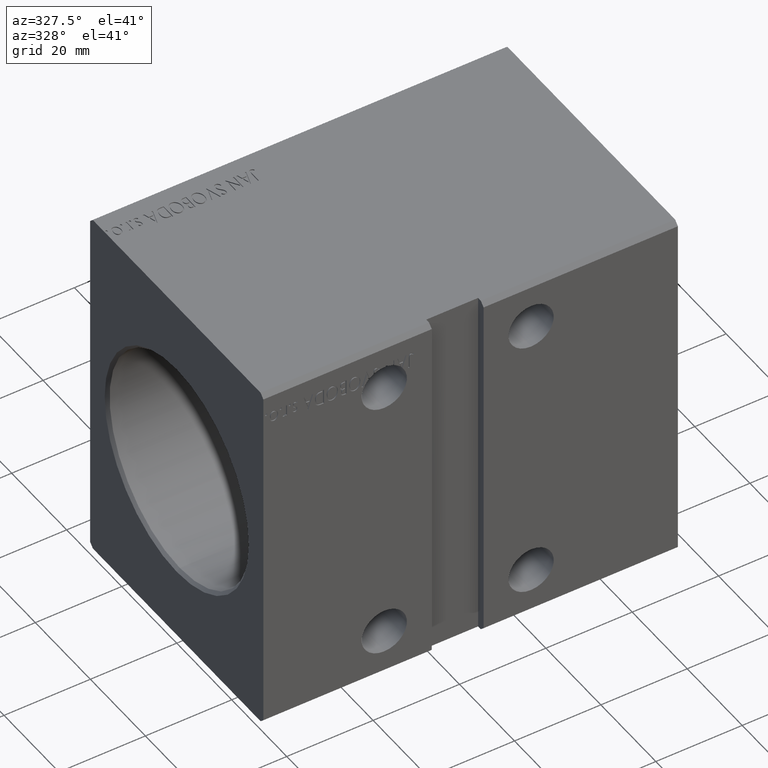
[diagram: clean part render]
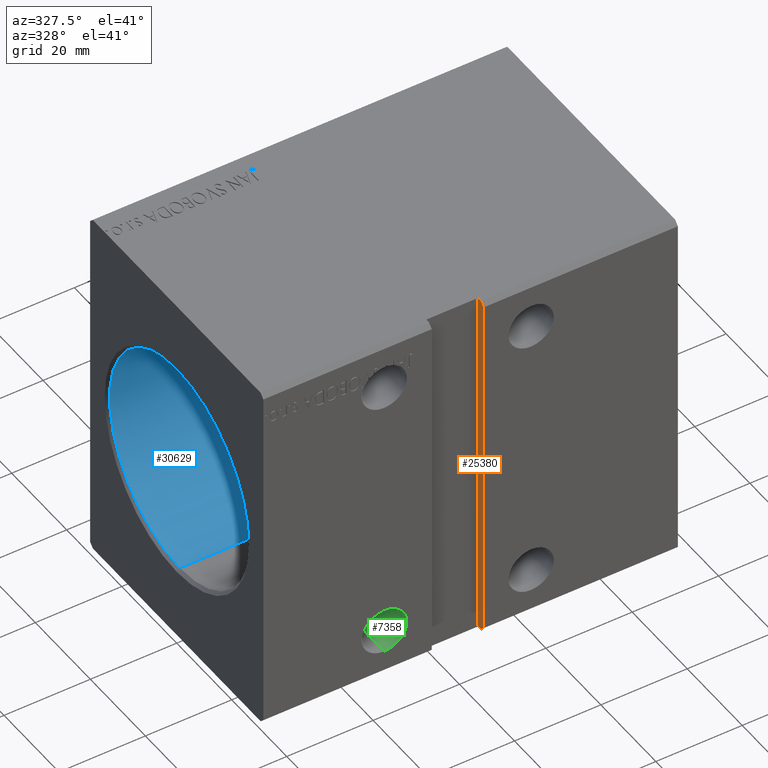
[diagram: same view with three faces highlighted in distinct colors, each labeled with its STEP entity id]
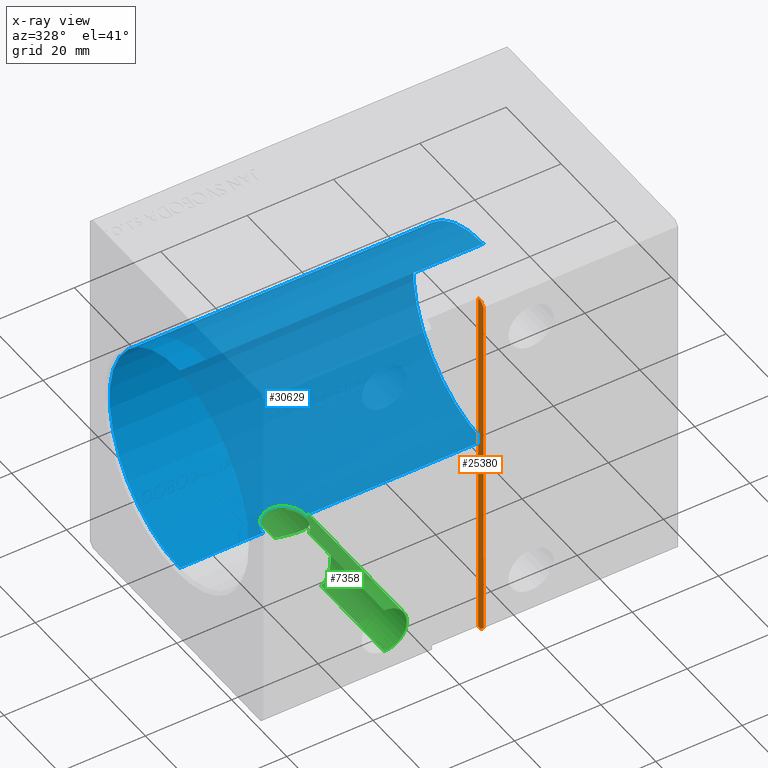
[diagram: x-ray of the same camera — body ghosted, the three highlighted faces saturated]
A machine part, auxiliary view with three faces highlighted in distinct colors.
The next image is the same camera in x-ray (body ghosted, the three faces saturated) — at least one of them is partly hidden behind the body in this view.
Their STEP definitions:

[orange] entity #25380 — the highlighted planar face has unit normal (1, -0, 0).
#4677 = LINE ( 'NONE', #29470, #24143 ) ;
#4847 = EDGE_CURVE ( 'NONE', #24682, #25882, #26608, .T. ) ;
#7623 = VECTOR ( 'NONE', #19812, 1000.000000000000000 ) ;
#8317 = ORIENTED_EDGE ( 'NONE', *, *, #4847, .F. ) ;
#9440 = EDGE_CURVE ( 'NONE', #19976, #32898, #28775, .T. ) ;
#9718 = FACE_OUTER_BOUND ( 'NONE', #17029, .T. ) ;
#9963 = CARTESIAN_POINT ( 'NONE',  ( 51.00000000000000000, -31.50000000000000000, 42.49999999999999289 ) ) ;
#10109 = PLANE ( 'NONE',  #34535 ) ;
#10162 = DIRECTION ( 'NONE',  ( -8.163404592832032733E-17, -0.000000000000000000, 1.000000000000000000 ) ) ;
#10320 = CARTESIAN_POINT ( 'NONE',  ( 51.00000000000000000, -30.50000000000000711, 42.49999999999999289 ) ) ;
#10357 = CARTESIAN_POINT ( 'NONE',  ( 51.00000000000000711, -30.50000000000000711, -42.50000000000000711 ) ) ;
#12105 = ORIENTED_EDGE ( 'NONE', *, *, #28875, .F. ) ;
#12447 = VECTOR ( 'NONE', #39195, 1000.000000000000000 ) ;
#12915 = EDGE_CURVE ( 'NONE', #19976, #17566, #28623, .T. ) ;
#14985 = CARTESIAN_POINT ( 'NONE',  ( 51.00000000000000000, -29.50000000000000000, 42.49999999999999289 ) ) ;
#15204 = VECTOR ( 'NONE', #10162, 1000.000000000000000 ) ;
#15212 = CARTESIAN_POINT ( 'NONE',  ( 51.00000000000000711, -31.50000000000000000, -41.50000000000000711 ) ) ;
#17029 = EDGE_LOOP ( 'NONE', ( #8317, #29336, #21435, #24986, #22072, #12105 ) ) ;
#17566 = VERTEX_POINT ( 'NONE', #10357 ) ;
#18726 = CARTESIAN_POINT ( 'NONE',  ( 51.00000000000000000, -30.50000000000000355, 42.49999999999999289 ) ) ;
#19011 = DIRECTION ( 'NONE',  ( 8.163404592832032733E-17, 0.000000000000000000, -1.000000000000000000 ) ) ;
#19784 = VECTOR ( 'NONE', #24709, 1000.000000000000114 ) ;
#19812 = DIRECTION ( 'NONE',  ( -8.163404592832032733E-17, -0.000000000000000000, 1.000000000000000000 ) ) ;
#19976 = VERTEX_POINT ( 'NONE', #26768 ) ;
#21435 = ORIENTED_EDGE ( 'NONE', *, *, #39465, .T. ) ;
#22072 = ORIENTED_EDGE ( 'NONE', *, *, #9440, .T. ) ;
#22936 = DIRECTION ( 'NONE',  ( 5.772398745160947357E-17, -0.7071067811865463515, -0.7071067811865487940 ) ) ;
#24143 = VECTOR ( 'NONE', #39372, 1000.000000000000000 ) ;
#24682 = VERTEX_POINT ( 'NONE', #26016 ) ;
#24709 = DIRECTION ( 'NONE',  ( 5.772398745160957218E-17, 0.7071067811865451302, -0.7071067811865500152 ) ) ;
#24986 = ORIENTED_EDGE ( 'NONE', *, *, #12915, .F. ) ;
#25017 = DIRECTION ( 'NONE',  ( 1.000000000000000000, -4.495634790819877356E-33, 8.163404592832032733E-17 ) ) ;
#25380 = ADVANCED_FACE ( 'NONE', ( #9718 ), #10109, .F. ) ;
#25871 = CARTESIAN_POINT ( 'NONE',  ( 51.00000000000000000, -31.50000000000000000, 41.49999999999999289 ) ) ;
#25882 = VERTEX_POINT ( 'NONE', #18726 ) ;
#26016 = CARTESIAN_POINT ( 'NONE',  ( 51.00000000000000000, -29.50000000000000000, 42.49999999999999289 ) ) ;
#26608 = LINE ( 'NONE', #14985, #12447 ) ;
#26730 = VERTEX_POINT ( 'NONE', #38485 ) ;
#26768 = CARTESIAN_POINT ( 'NONE',  ( 51.00000000000000711, -31.50000000000000000, -41.50000000000000711 ) ) ;
#28109 = VECTOR ( 'NONE', #22936, 1000.000000000000000 ) ;
#28623 = LINE ( 'NONE', #15212, #19784 ) ;
#28775 = LINE ( 'NONE', #9963, #15204 ) ;
#28875 = EDGE_CURVE ( 'NONE', #25882, #32898, #38617, .T. ) ;
#29336 = ORIENTED_EDGE ( 'NONE', *, *, #34002, .F. ) ;
#29470 = CARTESIAN_POINT ( 'NONE',  ( 51.00000000000000711, -29.50000000000000000, -42.50000000000000711 ) ) ;
#32817 = CARTESIAN_POINT ( 'NONE',  ( 51.00000000000000000, -29.50000000000000000, 42.49999999999999289 ) ) ;
#32898 = VERTEX_POINT ( 'NONE', #25871 ) ;
#34002 = EDGE_CURVE ( 'NONE', #26730, #24682, #35732, .T. ) ;
#34535 = AXIS2_PLACEMENT_3D ( 'NONE', #37812, #25017, #19011 ) ;
#35732 = LINE ( 'NONE', #32817, #7623 ) ;
#37812 = CARTESIAN_POINT ( 'NONE',  ( 51.00000000000000000, -29.50000000000000000, 42.49999999999999289 ) ) ;
#38485 = CARTESIAN_POINT ( 'NONE',  ( 51.00000000000000711, -29.50000000000000000, -42.50000000000000711 ) ) ;
#38617 = LINE ( 'NONE', #10320, #28109 ) ;
#39195 = DIRECTION ( 'NONE',  ( -0.000000000000000000, -1.000000000000000000, -5.507058653894625237E-17 ) ) ;
#39372 = DIRECTION ( 'NONE',  ( -0.000000000000000000, -1.000000000000000000, -5.507058653894625237E-17 ) ) ;
#39465 = EDGE_CURVE ( 'NONE', #26730, #17566, #4677, .T. ) ;

[blue] entity #30629 — the highlighted cylindrical surface (partial cylindrical patch) has radius 25.5 mm, axis along (-1, -0, -0).
#930 = DIRECTION ( 'NONE',  ( 0.000000000000000000, 0.000000000000000000, 1.000000000000000000 ) ) ;
#2134 = CIRCLE ( 'NONE', #25250, 25.50000000000000000 ) ;
#2465 = ORIENTED_EDGE ( 'NONE', *, *, #22807, .T. ) ;
#3686 = EDGE_CURVE ( 'NONE', #15121, #20873, #6936, .T. ) ;
#5631 = CARTESIAN_POINT ( 'NONE',  ( 30.00000000000000355, 0.3267573286235803676, -25.50000000000000000 ) ) ;
#6044 = CARTESIAN_POINT ( 'NONE',  ( 24.34605538778757960, 4.967975181727374512, -25.01146777117222797 ) ) ;
#6936 = LINE ( 'NONE', #16238, #12416 ) ;
#7511 = DIRECTION ( 'NONE',  ( 0.000000000000000000, 0.000000000000000000, -1.000000000000000000 ) ) ;
#7555 = CARTESIAN_POINT ( 'NONE',  ( 71.00000000000000000, 0.000000000000000000, 25.50000000000000000 ) ) ;
#7734 = CARTESIAN_POINT ( 'NONE',  ( 71.00000000000000000, 0.000000000000000000, 25.50000000000000000 ) ) ;
#8324 = CARTESIAN_POINT ( 'NONE',  ( 20.00000000000000000, -3.134036610811149934E-15, -25.50000000000000000 ) ) ;
#8531 = CARTESIAN_POINT ( 'NONE',  ( 27.06607222625468268, 4.556124808055513675, -25.08975505093522429 ) ) ;
#8934 = CARTESIAN_POINT ( 'NONE',  ( 28.97444571349605624, 3.051174878429631310, -25.31826115815195166 ) ) ;
#9138 = CARTESIAN_POINT ( 'NONE',  ( 20.50798384989834133, 2.220167468131768018, -25.40497864588191135 ) ) ;
#10179 = CARTESIAN_POINT ( 'NONE',  ( 30.00000000000000355, -2.053431075764368079E-15, -25.50000000000000000 ) ) ;
#11412 = CARTESIAN_POINT ( 'NONE',  ( 22.78282770073339591, 4.493342591930638896, -25.10131412369855397 ) ) ;
#11617 = CARTESIAN_POINT ( 'NONE',  ( 21.94666253367578435, 3.973053894949161613, -25.18926661868952621 ) ) ;
#11819 = CARTESIAN_POINT ( 'NONE',  ( 27.50463450642767071, 4.330546052886691477, -25.12971412530962212 ) ) ;
#12026 = CARTESIAN_POINT ( 'NONE',  ( 27.21587105132353201, 4.485168738282545142, -25.10257800555735130 ) ) ;
#12197 = EDGE_CURVE ( 'NONE', #37086, #20873, #34133, .T. ) ;
#12230 = CARTESIAN_POINT ( 'NONE',  ( 29.49330405447127390, 2.217494528287639710, -25.40520794151416339 ) ) ;
#12416 = VECTOR ( 'NONE', #16434, 1000.000000000000000 ) ;
#13052 = VECTOR ( 'NONE', #20326, 1000.000000000000000 ) ;
#14720 = CARTESIAN_POINT ( 'NONE',  ( 20.03258653562021507, 0.6567575304459177810, -25.49355371484010035 ) ) ;
#15121 = VERTEX_POINT ( 'NONE', #23548 ) ;
#15253 = EDGE_CURVE ( 'NONE', #37086, #20679, #34490, .T. ) ;
#15337 = CARTESIAN_POINT ( 'NONE',  ( 22.49302569277171671, 4.338560447697729749, -25.12889180368426167 ) ) ;
#15544 = CARTESIAN_POINT ( 'NONE',  ( 24.67104073305992884, 4.999871816305304861, -25.00502513171106855 ) ) ;
#16212 = ORIENTED_EDGE ( 'NONE', *, *, #3686, .F. ) ;
#16238 = CARTESIAN_POINT ( 'NONE',  ( 71.00000000000000000, 3.122849337825750222E-15, -25.50000000000000000 ) ) ;
#16421 = ORIENTED_EDGE ( 'NONE', *, *, #32670, .T. ) ;
#16434 = DIRECTION ( 'NONE',  ( -1.000000000000000000, -0.000000000000000000, -0.000000000000000000 ) ) ;
#17821 = CARTESIAN_POINT ( 'NONE',  ( 29.96724761369612722, 0.6586460632364271595, -25.49352030324794427 ) ) ;
#18436 = CARTESIAN_POINT ( 'NONE',  ( 20.31949754060877211, 1.766277129293085668, -25.43920765272777018 ) ) ;
#18635 = CARTESIAN_POINT ( 'NONE',  ( 21.02457139908732842, 3.050015144558136271, -25.31841209560450423 ) ) ;
#19496 = DIRECTION ( 'NONE',  ( -1.000000000000000000, 0.000000000000000000, 0.000000000000000000 ) ) ;
#19901 = EDGE_CURVE ( 'NONE', #27456, #15121, #20544, .T. ) ;
#20326 = DIRECTION ( 'NONE',  ( -1.000000000000000000, -0.000000000000000000, -0.000000000000000000 ) ) ;
#20544 = CIRCLE ( 'NONE', #36387, 25.50000000000000000 ) ;
#20679 = VERTEX_POINT ( 'NONE', #35450 ) ;
#20873 = VERTEX_POINT ( 'NONE', #10179 ) ;
#20921 = CARTESIAN_POINT ( 'NONE',  ( 26.61129902294075222, 4.744620775298039383, -25.05503743418965712 ) ) ;
#21140 = CARTESIAN_POINT ( 'NONE',  ( 28.04994438585750771, 3.975379988911018625, -25.18888533848727462 ) ) ;
#21683 = CARTESIAN_POINT ( 'NONE',  ( 71.00000000000000000, 3.122849337825750222E-15, -25.50000000000000000 ) ) ;
#22807 = EDGE_CURVE ( 'NONE', #37822, #20679, #2134, .T. ) ;
#23248 = ORIENTED_EDGE ( 'NONE', *, *, #19901, .F. ) ;
#23548 = CARTESIAN_POINT ( 'NONE',  ( 71.00000000000000000, 3.122849337825750222E-15, -25.50000000000000000 ) ) ;
#24233 = CARTESIAN_POINT ( 'NONE',  ( 25.65730514010279251, 4.967400076139254494, -25.01158120161191434 ) ) ;
#24437 = CARTESIAN_POINT ( 'NONE',  ( 27.64436561759636390, 4.246620089405058529, -25.14407714510884162 ) ) ;
#24639 = CARTESIAN_POINT ( 'NONE',  ( 28.76819752464882995, 3.302836481948387526, -25.28628795500045712 ) ) ;
#25250 = AXIS2_PLACEMENT_3D ( 'NONE', #29609, #19496, #7511 ) ;
#25527 = EDGE_LOOP ( 'NONE', ( #16212, #23248, #16421, #2465, #32466, #35737 ) ) ;
#26309 = FACE_OUTER_BOUND ( 'NONE', #25527, .T. ) ;
#27129 = DIRECTION ( 'NONE',  ( -1.000000000000000000, -0.000000000000000000, -0.000000000000000000 ) ) ;
#27327 = CARTESIAN_POINT ( 'NONE',  ( 20.16797194825473127, 1.295578642237274591, -25.46755375714367275 ) ) ;
#27456 = VERTEX_POINT ( 'NONE', #7555 ) ;
#27738 = CARTESIAN_POINT ( 'NONE',  ( 20.26349752496448531, 1.610143911287774898, -25.44960225575571400 ) ) ;
#27939 = CARTESIAN_POINT ( 'NONE',  ( 23.70019966210686846, 4.839311939079118829, -25.03668023981877866 ) ) ;
#29609 = CARTESIAN_POINT ( 'NONE',  ( 0.7000000000000061728, 0.000000000000000000, 0.000000000000000000 ) ) ;
#29813 = DIRECTION ( 'NONE',  ( 0.000000000000000000, 0.000000000000000000, 1.000000000000000000 ) ) ;
#30420 = CARTESIAN_POINT ( 'NONE',  ( 20.00000000000000355, 0.3312256091799867797, -25.50000000000000000 ) ) ;
#30626 = CARTESIAN_POINT ( 'NONE',  ( 20.66165525032084460, 2.507067963961032930, -25.37792729221531118 ) ) ;
#30629 = ADVANCED_FACE ( 'NONE', ( #26309 ), #38091, .F. ) ;
#30830 = CARTESIAN_POINT ( 'NONE',  ( 23.38419370266623432, 4.742905297661937247, -25.05535766502758932 ) ) ;
#31034 = CARTESIAN_POINT ( 'NONE',  ( 29.83880935354669361, 1.301263821219869499, -25.46880650042941951 ) ) ;
#31671 = VECTOR ( 'NONE', #34288, 1000.000000000000000 ) ;
#31767 = CARTESIAN_POINT ( 'NONE',  ( 20.00000000000000000, -3.134036610811149934E-15, -25.50000000000000000 ) ) ;
#32466 = ORIENTED_EDGE ( 'NONE', *, *, #15253, .F. ) ;
#32670 = EDGE_CURVE ( 'NONE', #27456, #37822, #36043, .T. ) ;
#33525 = CARTESIAN_POINT ( 'NONE',  ( 28.30338421662011683, 3.767717363158205046, -25.22120919466484423 ) ) ;
#33737 = CARTESIAN_POINT ( 'NONE',  ( 30.00000000000000355, -2.053431075764368079E-15, -25.50000000000000000 ) ) ;
#33939 = CARTESIAN_POINT ( 'NONE',  ( 29.74397549164577725, 1.612997161676902103, -25.45073894194393915 ) ) ;
#34133 = B_SPLINE_CURVE_WITH_KNOTS ( 'NONE', 3,
 ( #8324, #30420, #14720, #37432, #27327, #27738, #18436, #9138, #30626, #18635, #39907, #34345, #11617, #15337, #11412, #30830, #27939, #6044, #15544, #40118, #24233, #36623, #20921, #8531, #12026, #11819, #24437, #21140, #33525, #24639, #8934, #37038, #12230, #33939, #31034, #17821, #5631, #33737 ),
 .UNSPECIFIED., .F., .F.,
 ( 4, 2, 2, 2, 2, 2, 2, 2, 2, 2, 2, 2, 2, 2, 2, 2, 2, 2, 4 ),
 ( 4.549170456078537633E-19, 0.0009793934430403388510, 0.001469090164560507084, 0.001958786886080675534, 0.002938180329121015469, 0.003917573772161356271, 0.004896967215201696207, 0.005876360658242036142, 0.006855754101282376077, 0.007835147544322716012, 0.008814540987363055080, 0.009793934430403395883, 0.01028363115192357062, 0.01077332787344374536, 0.01175272131648408790, 0.01273211475952443217, 0.01371150820256477471, 0.01469090164560512071, 0.01567029508864546325 ),
 .UNSPECIFIED. ) ;
#34288 = DIRECTION ( 'NONE',  ( -1.000000000000000000, -0.000000000000000000, -0.000000000000000000 ) ) ;
#34345 = CARTESIAN_POINT ( 'NONE',  ( 21.69542943364255549, 3.766382907716887996, -25.22138545124708386 ) ) ;
#34490 = LINE ( 'NONE', #21683, #31671 ) ;
#34719 = AXIS2_PLACEMENT_3D ( 'NONE', #35005, #27129, #29813 ) ;
#35005 = CARTESIAN_POINT ( 'NONE',  ( 71.00000000000000000, 0.000000000000000000, 0.000000000000000000 ) ) ;
#35450 = CARTESIAN_POINT ( 'NONE',  ( 0.7000000000000061728, 3.122849337825750222E-15, -25.50000000000000000 ) ) ;
#35737 = ORIENTED_EDGE ( 'NONE', *, *, #12197, .T. ) ;
#35875 = DIRECTION ( 'NONE',  ( -1.000000000000000000, 0.000000000000000000, 0.000000000000000000 ) ) ;
#36043 = LINE ( 'NONE', #7734, #13052 ) ;
#36387 = AXIS2_PLACEMENT_3D ( 'NONE', #38748, #35875, #930 ) ;
#36623 = CARTESIAN_POINT ( 'NONE',  ( 26.29921875325239355, 4.839333032023224845, -25.03667536887482470 ) ) ;
#37038 = CARTESIAN_POINT ( 'NONE',  ( 29.33638950670271939, 2.510301359288530598, -25.37759648384181332 ) ) ;
#37086 = VERTEX_POINT ( 'NONE', #31767 ) ;
#37432 = CARTESIAN_POINT ( 'NONE',  ( 20.12823546633704908, 1.136900203851927582, -25.47514692387052904 ) ) ;
#37822 = VERTEX_POINT ( 'NONE', #39677 ) ;
#38091 = CYLINDRICAL_SURFACE ( 'NONE', #34719, 25.50000000000000000 ) ;
#38748 = CARTESIAN_POINT ( 'NONE',  ( 71.00000000000000000, 0.000000000000000000, 0.000000000000000000 ) ) ;
#39677 = CARTESIAN_POINT ( 'NONE',  ( 0.7000000000000061728, 0.000000000000000000, 25.50000000000000000 ) ) ;
#39907 = CARTESIAN_POINT ( 'NONE',  ( 21.23525699303928604, 3.306438707600416471, -25.28579418093886488 ) ) ;
#40118 = CARTESIAN_POINT ( 'NONE',  ( 25.32505101572085593, 5.000127419973282805, -25.00497402120260659 ) ) ;

[green] entity #7358 — the highlighted cylindrical surface (edge-blend (fillet) strip) has radius 5.25 mm, axis along (-0, -1, -0).
#112 = CARTESIAN_POINT ( 'NONE',  ( 33.23144431029089674, 3.640278819404334509, -30.98895093756146224 ) ) ;
#258 = CARTESIAN_POINT ( 'NONE',  ( 33.14534123172962410, -3.829195150338681852, -32.57419036198258055 ) ) ;
#309 = CARTESIAN_POINT ( 'NONE',  ( 33.15604149390754429, 3.806217606244090668, -30.47803286305385839 ) ) ;
#455 = CARTESIAN_POINT ( 'NONE',  ( 32.59211834536794328, -4.837231280210447792, -34.05332277271028119 ) ) ;
#523 = VECTOR ( 'NONE', #2084, 1000.000000000000000 ) ;
#529 = ORIENTED_EDGE ( 'NONE', *, *, #6901, .T. ) ;
#605 = CARTESIAN_POINT ( 'NONE',  ( 29.77622647534795775, 1.528410634089179210, -26.55868855115196325 ) ) ;
#806 = CARTESIAN_POINT ( 'NONE',  ( 29.08713769534752203, 2.906319583359787462, -26.35758249700139544 ) ) ;
#829 = CARTESIAN_POINT ( 'NONE',  ( 28.26923076923077360, 31.30000000000001492, -36.74309210227126954 ) ) ;
#867 = DIRECTION ( 'NONE',  ( -0.000000000000000000, -1.000000000000000000, -5.507058653894625853E-17 ) ) ;
#1003 = CARTESIAN_POINT ( 'NONE',  ( 29.64211197063731262, 1.896961442277685261, -26.51019633192298031 ) ) ;
#1154 = AXIS2_PLACEMENT_3D ( 'NONE', #6739, #26343, #29233 ) ;
#1461 = DIRECTION ( 'NONE',  ( -0.000000000000000000, 1.000000000000000000, -0.000000000000000000 ) ) ;
#1574 = DIRECTION ( 'NONE',  ( -0.000000000000000000, -1.000000000000000000, -5.507058653894625853E-17 ) ) ;
#1623 = VERTEX_POINT ( 'NONE', #25740 ) ;
#1652 = EDGE_CURVE ( 'NONE', #3496, #16906, #22276, .T. ) ;
#1935 = EDGE_CURVE ( 'NONE', #40695, #38968, #38835, .T. ) ;
#2084 = DIRECTION ( 'NONE',  ( -0.000000000000000000, -1.000000000000000000, -5.507058653894625853E-17 ) ) ;
#2110 = DIRECTION ( 'NONE',  ( 0.000000000000000000, 1.000000000000000000, -0.000000000000000000 ) ) ;
#2228 = CARTESIAN_POINT ( 'NONE',  ( 28.86302342089060247, 31.50000000000002842, -36.67857997669189984 ) ) ;
#2312 = ORIENTED_EDGE ( 'NONE', *, *, #8060, .F. ) ;
#2318 = DIRECTION ( 'NONE',  ( 2.775557561562892613E-14, 0.000000000000000000, -1.000000000000000000 ) ) ;
#2322 = CARTESIAN_POINT ( 'NONE',  ( 28.00000000000000355, 31.50000000000001421, -31.50000000000000000 ) ) ;
#2480 = CARTESIAN_POINT ( 'NONE',  ( 28.00000000000000355, 8.485281374238567764, -36.75000000000000000 ) ) ;
#2577 = CARTESIAN_POINT ( 'NONE',  ( 28.30577405097864840, -3.756252480007841843, -26.25701703468165960 ) ) ;
#2987 = CARTESIAN_POINT ( 'NONE',  ( 29.08127013886779366, -2.894927564752138416, -26.36140852983929150 ) ) ;
#3007 = CARTESIAN_POINT ( 'NONE',  ( 28.00000000000000355, 8.485281374238567764, -36.75000000000000000 ) ) ;
#3023 = B_SPLINE_CURVE_WITH_KNOTS ( 'NONE', 3,
 ( #3007, #3604, #16026, #19119, #6327, #12522, #19514, #21824, #13110, #25129, #24922, #15625, #31726, #35026, #25529, #40814, #40604, #18922, #12723, #25726, #9428, #18720, #112, #309, #25332, #3210, #28434, #22030, #35225, #28830 ),
 .UNSPECIFIED., .F., .F.,
 ( 4, 2, 2, 2, 2, 2, 2, 2, 2, 2, 2, 2, 2, 2, 4 ),
 ( 0.01110394410821251808, 0.01270743503137620155, 0.01431092595453988675, 0.01591441687770357022, 0.01671616233928542583, 0.01751790780086727797, 0.01831965326244913358, 0.01912139872403098573, 0.01992314418561284134, 0.02032401691640375874, 0.02072488964719466920, 0.02152663510877650399, 0.02232838057035833185, 0.02313012603194016317, 0.02393187149352199450 ),
 .UNSPECIFIED. ) ;
#3159 = CARTESIAN_POINT ( 'NONE',  ( 28.49971745761768815, -8.295975715655792726, -36.73191195388432106 ) ) ;
#3210 = CARTESIAN_POINT ( 'NONE',  ( 32.96926632240329980, 4.184807765991163997, -29.78995615984103296 ) ) ;
#3291 = EDGE_CURVE ( 'NONE', #32184, #27005, #33927, .T. ) ;
#3496 = VERTEX_POINT ( 'NONE', #33417 ) ;
#3520 = EDGE_CURVE ( 'NONE', #35137, #27005, #6505, .T. ) ;
#3556 = CARTESIAN_POINT ( 'NONE',  ( 32.69212753593811982, -4.675829051438523898, -33.86519840367557777 ) ) ;
#3604 = CARTESIAN_POINT ( 'NONE',  ( 28.50507965971466362, 8.306708748026755629, -36.75000000000000711 ) ) ;
#3967 = ORIENTED_EDGE ( 'NONE', *, *, #3291, .F. ) ;
#4521 = CARTESIAN_POINT ( 'NONE',  ( 29.94318194024702251, 0.7762498795657372108, -26.62279383384894516 ) ) ;
#4820 = CARTESIAN_POINT ( 'NONE',  ( 31.99260834176380186, 31.30000000000001492, -34.90904365317872049 ) ) ;
#4948 = ORIENTED_EDGE ( 'NONE', *, *, #35906, .T. ) ;
#5003 = AXIS2_PLACEMENT_3D ( 'NONE', #16679, #25382, #34679 ) ;
#5199 = DIRECTION ( 'NONE',  ( 0.000000000000000000, 1.000000000000000000, 5.507058653894625853E-17 ) ) ;
#5237 = ORIENTED_EDGE ( 'NONE', *, *, #33166, .T. ) ;
#5288 = CARTESIAN_POINT ( 'NONE',  ( 30.28846153846154010, 31.50000000000002842, -36.22498082398036701 ) ) ;
#5332 = AXIS2_PLACEMENT_3D ( 'NONE', #35521, #32616, #6611 ) ;
#5487 = CARTESIAN_POINT ( 'NONE',  ( 29.29260809760057782, -2.571164575049535994, -26.41045859468331614 ) ) ;
#5527 = CARTESIAN_POINT ( 'NONE',  ( 28.00000000000000355, 31.50000000000002842, -31.50000000000000000 ) ) ;
#5696 = EDGE_CURVE ( 'NONE', #25540, #23366, #29014, .T. ) ;
#5747 = CARTESIAN_POINT ( 'NONE',  ( 28.26923076923077360, 31.50000000000002842, -36.74309210227126954 ) ) ;
#5822 = LINE ( 'NONE', #14703, #16243 ) ;
#5851 = CARTESIAN_POINT ( 'NONE',  ( 28.00000000000040501, -4.000000000000124345, -26.24999999999979750 ) ) ;
#5885 = VERTEX_POINT ( 'NONE', #40446 ) ;
#6076 = CARTESIAN_POINT ( 'NONE',  ( 29.22269784940499093, -7.952126355574261396, -36.61103847274182499 ) ) ;
#6101 = CARTESIAN_POINT ( 'NONE',  ( 29.38806803352447972, -2.404496078071657106, -26.43603690665073458 ) ) ;
#6278 = CARTESIAN_POINT ( 'NONE',  ( 29.67436925629790423, -7.695307840376844233, -36.48138453588469332 ) ) ;
#6327 = CARTESIAN_POINT ( 'NONE',  ( 30.32424944703825886, 7.272380113661209400, -36.22777201235059863 ) ) ;
#6432 = VERTEX_POINT ( 'NONE', #30238 ) ;
#6505 = CIRCLE ( 'NONE', #11731, 5.249999999999997335 ) ;
#6525 = EDGE_CURVE ( 'NONE', #35313, #19167, #10799, .T. ) ;
#6611 = DIRECTION ( 'NONE',  ( 0.000000000000000000, 0.000000000000000000, 1.000000000000000000 ) ) ;
#6739 = CARTESIAN_POINT ( 'NONE',  ( 28.00000000000000355, 31.50000000000002842, -31.50000000000000000 ) ) ;
#6901 = EDGE_CURVE ( 'NONE', #11909, #1623, #33488, .T. ) ;
#7019 = CARTESIAN_POINT ( 'NONE',  ( 30.00000000000004619, -3.475854075843539146E-13, -26.64587804026282569 ) ) ;
#7029 = CIRCLE ( 'NONE', #20212, 5.249999999999997335 ) ;
#7358 = ADVANCED_FACE ( 'NONE', ( #10794 ), #39090, .F. ) ;
#7742 = VERTEX_POINT ( 'NONE', #2228 ) ;
#8060 = EDGE_CURVE ( 'NONE', #15888, #16906, #11483, .T. ) ;
#8216 = DIRECTION ( 'NONE',  ( -0.000000000000000000, 1.000000000000000000, 5.507058653894625853E-17 ) ) ;
#8486 = CIRCLE ( 'NONE', #20315, 5.249999999999997335 ) ;
#8730 = ORIENTED_EDGE ( 'NONE', *, *, #13324, .F. ) ;
#8935 = CARTESIAN_POINT ( 'NONE',  ( 28.00000000000000355, 31.30000000000000071, -31.50000000000000000 ) ) ;
#9089 = DIRECTION ( 'NONE',  ( -0.000000000000000000, -1.000000000000000000, -5.507058653894625853E-17 ) ) ;
#9170 = CARTESIAN_POINT ( 'NONE',  ( 32.00127014616709431, -5.672801715841330861, -34.92465175887961948 ) ) ;
#9271 = ORIENTED_EDGE ( 'NONE', *, *, #14530, .T. ) ;
#9312 = CARTESIAN_POINT ( 'NONE',  ( 28.86302342089060247, 31.50000000000002842, -36.67857997669189984 ) ) ;
#9377 = CARTESIAN_POINT ( 'NONE',  ( 32.26259123308183518, -5.330200586698289555, -34.59367876446104617 ) ) ;
#9428 = CARTESIAN_POINT ( 'NONE',  ( 33.24930188362613137, 3.598474814633961572, -31.65992194442431185 ) ) ;
#9574 = CARTESIAN_POINT ( 'NONE',  ( 33.08962436763945902, -3.947224592150487599, -32.80873910227624890 ) ) ;
#9621 = ORIENTED_EDGE ( 'NONE', *, *, #17901, .F. ) ;
#9839 = EDGE_CURVE ( 'NONE', #3496, #5885, #11337, .T. ) ;
#9927 = CIRCLE ( 'NONE', #5332, 5.249999999999997335 ) ;
#9967 = CARTESIAN_POINT ( 'NONE',  ( 31.07321886333549443, -6.659957587000611134, -35.77930101341501512 ) ) ;
#10461 = ORIENTED_EDGE ( 'NONE', *, *, #27528, .T. ) ;
#10522 = CARTESIAN_POINT ( 'NONE',  ( 28.00000000000000355, 3.999999999999996447, -26.25000000000000711 ) ) ;
#10532 = CARTESIAN_POINT ( 'NONE',  ( 31.92673162601504444, 31.50000000000002842, -34.98472075455885744 ) ) ;
#10777 = CARTESIAN_POINT ( 'NONE',  ( 28.00000000000000355, 31.30000000000001492, -31.50000000000000000 ) ) ;
#10794 = FACE_OUTER_BOUND ( 'NONE', #31728, .T. ) ;
#10799 = B_SPLINE_CURVE_WITH_KNOTS ( 'NONE', 3,
 ( #12469, #31067, #12262, #25077, #16170, #37667, #34579, #31874, #37868, #31476, #24872, #258, #9574, #12871, #25479, #3556, #455, #9377, #9170, #21773, #9967, #38064, #34378, #38264, #6278, #6076, #18872, #3159, #31677, #15776 ),
 .UNSPECIFIED., .F., .F.,
 ( 4, 2, 2, 2, 2, 2, 2, 2, 2, 2, 2, 2, 2, 2, 4 ),
 ( 0.000000000000000000, 0.0008071024603539738796, 0.001614204920707947759, 0.002421307381061921313, 0.003228409841415895518, 0.004035512301769869289, 0.004842614762123842627, 0.005649717222477816832, 0.006456819682831791037, 0.008071024603539740314, 0.009685229524247690458, 0.01049233198460166119, 0.01129943444495563019, 0.01210653690530960266, 0.01291363936566357340 ),
 .UNSPECIFIED. ) ;
#11093 = LINE ( 'NONE', #29690, #11222 ) ;
#11138 = VECTOR ( 'NONE', #25914, 1000.000000000000000 ) ;
#11222 = VECTOR ( 'NONE', #35706, 1000.000000000000000 ) ;
#11337 = LINE ( 'NONE', #26638, #25751 ) ;
#11367 = DIRECTION ( 'NONE',  ( 0.000000000000000000, 0.000000000000000000, 1.000000000000000000 ) ) ;
#11425 = CARTESIAN_POINT ( 'NONE',  ( 30.01923076923077005, 31.30000000000001492, -36.34615384615384670 ) ) ;
#11465 = AXIS2_PLACEMENT_3D ( 'NONE', #8935, #2110, #2318 ) ;
#11483 = LINE ( 'NONE', #5288, #23065 ) ;
#11731 = AXIS2_PLACEMENT_3D ( 'NONE', #5527, #8216, #14397 ) ;
#11909 = VERTEX_POINT ( 'NONE', #19535 ) ;
#12170 = VERTEX_POINT ( 'NONE', #20507 ) ;
#12186 = CARTESIAN_POINT ( 'NONE',  ( 28.00000000000000355, 31.50000000000002842, -26.25000000000000355 ) ) ;
#12262 = CARTESIAN_POINT ( 'NONE',  ( 32.71187504199514962, -4.643152877768041975, -29.17423996665695185 ) ) ;
#12469 = CARTESIAN_POINT ( 'NONE',  ( 32.50249930594109316, -4.971167283883480614, -28.80000000000000782 ) ) ;
#12522 = CARTESIAN_POINT ( 'NONE',  ( 31.07482485393644112, 6.658201535389141945, -35.77778164595130761 ) ) ;
#12707 = VECTOR ( 'NONE', #9089, 1000.000000000000000 ) ;
#12723 = CARTESIAN_POINT ( 'NONE',  ( 33.22178636411108954, 3.661002062035550342, -32.05930808703784152 ) ) ;
#12871 = CARTESIAN_POINT ( 'NONE',  ( 32.95326830917984040, -4.215225687027825963, -33.25562162745016792 ) ) ;
#13110 = CARTESIAN_POINT ( 'NONE',  ( 31.99697168527629998, 5.664548906880339629, -34.91033173191557637 ) ) ;
#13259 = CARTESIAN_POINT ( 'NONE',  ( 28.00000000000000355, 31.50000000000002842, -31.50000000000000000 ) ) ;
#13324 = EDGE_CURVE ( 'NONE', #36088, #24073, #24458, .T. ) ;
#13418 = CARTESIAN_POINT ( 'NONE',  ( 29.29772652751258377, 2.584030370591069214, -26.40975656477458600 ) ) ;
#13541 = EDGE_CURVE ( 'NONE', #26992, #7742, #27505, .T. ) ;
#13543 = DIRECTION ( 'NONE',  ( -0.000000000000000000, -1.000000000000000000, -5.507058653894625853E-17 ) ) ;
#13824 = CARTESIAN_POINT ( 'NONE',  ( 30.01923076923077005, 31.50000000000002842, -36.34615384615384670 ) ) ;
#13918 = CARTESIAN_POINT ( 'NONE',  ( 30.01923076923077005, 31.50000000000002842, -36.34615384615384670 ) ) ;
#13958 = B_SPLINE_CURVE_WITH_KNOTS ( 'NONE', 3,
 ( #22006, #27797, #2577, #24287, #24898, #15399, #2987, #5487, #6101, #21399, #27999, #40377, #40581, #34604, #31300, #40790 ),
 .UNSPECIFIED., .F., .F.,
 ( 4, 2, 2, 2, 2, 2, 2, 4 ),
 ( 0.02613071335575479701, 0.02670783500684158901, 0.02728495665792837754, 0.02786207830901516955, 0.02843919996010195808, 0.02901632161118875008, 0.02959344326227553862, 0.03074768656444912263 ),
 .UNSPECIFIED. ) ;
#14078 = AXIS2_PLACEMENT_3D ( 'NONE', #13259, #38059, #28966 ) ;
#14297 = ORIENTED_EDGE ( 'NONE', *, *, #3520, .T. ) ;
#14397 = DIRECTION ( 'NONE',  ( 0.000000000000000000, 0.000000000000000000, 1.000000000000000000 ) ) ;
#14483 = DIRECTION ( 'NONE',  ( 3.304235192336777011E-14, 0.000000000000000000, -1.000000000000000000 ) ) ;
#14530 = EDGE_CURVE ( 'NONE', #18384, #23630, #11093, .T. ) ;
#14703 = CARTESIAN_POINT ( 'NONE',  ( 32.50249930594109316, 31.50000000000002842, -28.80000000000000782 ) ) ;
#14795 = ORIENTED_EDGE ( 'NONE', *, *, #9839, .F. ) ;
#14936 = DIRECTION ( 'NONE',  ( -0.000000000000000000, 1.000000000000000000, -0.000000000000000000 ) ) ;
#15254 = VECTOR ( 'NONE', #1574, 1000.000000000000000 ) ;
#15326 = CARTESIAN_POINT ( 'NONE',  ( 32.20134712561158352, 31.50000000000002842, -34.64820303190808914 ) ) ;
#15399 = CARTESIAN_POINT ( 'NONE',  ( 28.96555741215129487, -3.051491898883362364, -26.33803751904576984 ) ) ;
#15625 = CARTESIAN_POINT ( 'NONE',  ( 32.59350529482215819, 4.835035883539086754, -34.05079700972326862 ) ) ;
#15776 = CARTESIAN_POINT ( 'NONE',  ( 28.00000000000009592, -8.485281374238560659, -36.75000000000000000 ) ) ;
#15818 = AXIS2_PLACEMENT_3D ( 'NONE', #29185, #867, #20498 ) ;
#15888 = VERTEX_POINT ( 'NONE', #30322 ) ;
#16026 = CARTESIAN_POINT ( 'NONE',  ( 28.99839540368256863, 8.079827796171874965, -36.67563326641717936 ) ) ;
#16170 = CARTESIAN_POINT ( 'NONE',  ( 32.96902614846746360, -4.185280637644433810, -29.78916438976628456 ) ) ;
#16243 = VECTOR ( 'NONE', #5199, 1000.000000000000000 ) ;
#16636 = EDGE_CURVE ( 'NONE', #36936, #12170, #9927, .T. ) ;
#16679 = CARTESIAN_POINT ( 'NONE',  ( 28.00000000000000355, 31.30000000000000071, -31.50000000000000000 ) ) ;
#16736 = CIRCLE ( 'NONE', #11465, 5.249999999999997335 ) ;
#16906 = VERTEX_POINT ( 'NONE', #37953 ) ;
#17047 = CIRCLE ( 'NONE', #29568, 5.249999999999997335 ) ;
#17135 = CARTESIAN_POINT ( 'NONE',  ( 30.00000000000002487, 0.1943795842264825768, -26.64587804026311346 ) ) ;
#17318 = CARTESIAN_POINT ( 'NONE',  ( 28.00000000000000355, -31.50000000000000000, -36.75000000000000711 ) ) ;
#17396 = CARTESIAN_POINT ( 'NONE',  ( 31.92673162601504444, 31.30000000000001492, -34.98472075455885744 ) ) ;
#17545 = AXIS2_PLACEMENT_3D ( 'NONE', #24190, #21099, #11367 ) ;
#17611 = CARTESIAN_POINT ( 'NONE',  ( 28.00000000000000355, 31.50000000000002842, -36.75000000000000000 ) ) ;
#17901 = EDGE_CURVE ( 'NONE', #23228, #22098, #27205, .T. ) ;
#18058 = CARTESIAN_POINT ( 'NONE',  ( 28.00000000000000355, 31.30000000000001492, -31.50000000000000000 ) ) ;
#18384 = VERTEX_POINT ( 'NONE', #17611 ) ;
#18720 = CARTESIAN_POINT ( 'NONE',  ( 33.25121982066826121, 3.594075918232833899, -31.25470105989242597 ) ) ;
#18872 = CARTESIAN_POINT ( 'NONE',  ( 28.98517754201990115, -8.074007388929286932, -36.66256190678087279 ) ) ;
#18877 = ORIENTED_EDGE ( 'NONE', *, *, #30825, .T. ) ;
#18922 = CARTESIAN_POINT ( 'NONE',  ( 33.20635492453020277, 3.695669416002513863, -32.18735332703968055 ) ) ;
#19119 = CARTESIAN_POINT ( 'NONE',  ( 29.90296816711210681, 7.565162666609802855, -36.41555543611264767 ) ) ;
#19167 = VERTEX_POINT ( 'NONE', #33122 ) ;
#19514 = CARTESIAN_POINT ( 'NONE',  ( 31.40868502255943895, 6.334805045421433078, -35.51517373941182143 ) ) ;
#19535 = CARTESIAN_POINT ( 'NONE',  ( 30.00000000000004619, -3.475854075843539146E-13, -26.64587804026282569 ) ) ;
#19624 = ORIENTED_EDGE ( 'NONE', *, *, #6525, .T. ) ;
#20212 = AXIS2_PLACEMENT_3D ( 'NONE', #2322, #14936, #27543 ) ;
#20315 = AXIS2_PLACEMENT_3D ( 'NONE', #18058, #40345, #37262 ) ;
#20381 = CARTESIAN_POINT ( 'NONE',  ( 28.26923076923077360, 31.50000000000002842, -36.74309210227126954 ) ) ;
#20498 = DIRECTION ( 'NONE',  ( 0.000000000000000000, 0.000000000000000000, -1.000000000000000000 ) ) ;
#20507 = CARTESIAN_POINT ( 'NONE',  ( 28.00000000000000355, -31.50000000000000000, -26.25000000000001066 ) ) ;
#20876 = VECTOR ( 'NONE', #13543, 1000.000000000000000 ) ;
#21099 = DIRECTION ( 'NONE',  ( -0.000000000000000000, 1.000000000000000000, 5.507058653894625853E-17 ) ) ;
#21122 = ORIENTED_EDGE ( 'NONE', *, *, #1935, .F. ) ;
#21251 = CARTESIAN_POINT ( 'NONE',  ( 31.92673162601504444, 31.50000000000002842, -34.98472075455885744 ) ) ;
#21399 = CARTESIAN_POINT ( 'NONE',  ( 29.55927875255592241, -2.061484832055161309, -26.48610881167892472 ) ) ;
#21543 = CARTESIAN_POINT ( 'NONE',  ( 32.20134712561158352, 31.50000000000002842, -34.64820303190808914 ) ) ;
#21773 = CARTESIAN_POINT ( 'NONE',  ( 31.40682111085803996, -6.336490055253520381, -35.51646266891867754 ) ) ;
#21824 = CARTESIAN_POINT ( 'NONE',  ( 31.85706388014904888, 5.833603055918780811, -35.06792960407344140 ) ) ;
#21912 = DIRECTION ( 'NONE',  ( 0.000000000000000000, 1.000000000000000000, 5.507058653894625853E-17 ) ) ;
#21960 = CARTESIAN_POINT ( 'NONE',  ( 31.99260834176380186, 31.50000000000002842, -34.90904365317872049 ) ) ;
#22006 = CARTESIAN_POINT ( 'NONE',  ( 28.00000000000040501, -4.000000000000124345, -26.24999999999979750 ) ) ;
#22030 = CARTESIAN_POINT ( 'NONE',  ( 32.71185286926652225, 4.643192855731156143, -29.17418523732783697 ) ) ;
#22098 = VERTEX_POINT ( 'NONE', #829 ) ;
#22255 = EDGE_CURVE ( 'NONE', #23403, #12170, #40478, .T. ) ;
#22276 = CIRCLE ( 'NONE', #1154, 5.249999999999997335 ) ;
#22531 = CARTESIAN_POINT ( 'NONE',  ( 28.30897981112273598, 3.768265141657948458, -26.25000000000000711 ) ) ;
#23065 = VECTOR ( 'NONE', #27398, 1000.000000000000000 ) ;
#23228 = VERTEX_POINT ( 'NONE', #5747 ) ;
#23366 = VERTEX_POINT ( 'NONE', #11425 ) ;
#23403 = VERTEX_POINT ( 'NONE', #5851 ) ;
#23630 = VERTEX_POINT ( 'NONE', #2480 ) ;
#24059 = ORIENTED_EDGE ( 'NONE', *, *, #28171, .T. ) ;
#24073 = VERTEX_POINT ( 'NONE', #4820 ) ;
#24190 = CARTESIAN_POINT ( 'NONE',  ( 28.00000000000000355, 31.50000000000002842, -31.50000000000000000 ) ) ;
#24219 = ORIENTED_EDGE ( 'NONE', *, *, #33142, .F. ) ;
#24287 = CARTESIAN_POINT ( 'NONE',  ( 28.58666276806465945, -3.489043559181739695, -26.28097758757093061 ) ) ;
#24458 = LINE ( 'NONE', #21960, #26359 ) ;
#24539 = CARTESIAN_POINT ( 'NONE',  ( 28.00000000000000355, 31.50000000000002842, -26.25000000000000355 ) ) ;
#24872 = CARTESIAN_POINT ( 'NONE',  ( 33.22560366286070632, -3.653595990558375473, -32.06699883898451731 ) ) ;
#24898 = CARTESIAN_POINT ( 'NONE',  ( 28.71853533532746638, -3.348095482201780104, -26.29789804571024092 ) ) ;
#24922 = CARTESIAN_POINT ( 'NONE',  ( 32.37441739424195930, 5.163028447830273038, -34.41055471333661586 ) ) ;
#25077 = CARTESIAN_POINT ( 'NONE',  ( 32.88997847107852124, -4.333604162310006558, -29.57671200896456654 ) ) ;
#25129 = CARTESIAN_POINT ( 'NONE',  ( 32.25532018814953972, 5.329639392156568789, -34.58194666906123871 ) ) ;
#25180 = EDGE_CURVE ( 'NONE', #25540, #7742, #25945, .T. ) ;
#25332 = CARTESIAN_POINT ( 'NONE',  ( 33.10231161250800369, 3.921016231732447732, -30.24132056221480980 ) ) ;
#25382 = DIRECTION ( 'NONE',  ( 0.000000000000000000, 1.000000000000000000, -0.000000000000000000 ) ) ;
#25479 = CARTESIAN_POINT ( 'NONE',  ( 32.87240420797046880, -4.365484547417698202, -33.46720653120355138 ) ) ;
#25529 = CARTESIAN_POINT ( 'NONE',  ( 32.95495435223187997, 4.212036518139114172, -33.25090076812314521 ) ) ;
#25540 = VERTEX_POINT ( 'NONE', #13824 ) ;
#25624 = CARTESIAN_POINT ( 'NONE',  ( 29.98845759517407217, 0.3910273533402481849, -26.64107702960434310 ) ) ;
#25647 = ORIENTED_EDGE ( 'NONE', *, *, #33584, .T. ) ;
#25726 = CARTESIAN_POINT ( 'NONE',  ( 33.24327641564041613, 3.612353948695807393, -31.79653127631243947 ) ) ;
#25740 = CARTESIAN_POINT ( 'NONE',  ( 28.00000000000000355, 3.999999999999996447, -26.25000000000000711 ) ) ;
#25751 = VECTOR ( 'NONE', #27052, 1000.000000000000000 ) ;
#25914 = DIRECTION ( 'NONE',  ( -0.000000000000000000, -1.000000000000000000, -5.507058653894625853E-17 ) ) ;
#25945 = CIRCLE ( 'NONE', #14078, 5.249999999999997335 ) ;
#25953 = LINE ( 'NONE', #31553, #20876 ) ;
#26343 = DIRECTION ( 'NONE',  ( -0.000000000000000000, 1.000000000000000000, 5.507058653894625853E-17 ) ) ;
#26359 = VECTOR ( 'NONE', #31259, 1000.000000000000000 ) ;
#26638 = CARTESIAN_POINT ( 'NONE',  ( 31.49410893708455461, 31.50000000000002842, -35.41838011629624816 ) ) ;
#26992 = VERTEX_POINT ( 'NONE', #36624 ) ;
#26996 = EDGE_CURVE ( 'NONE', #32184, #24073, #16736, .T. ) ;
#27005 = VERTEX_POINT ( 'NONE', #21543 ) ;
#27052 = DIRECTION ( 'NONE',  ( -0.000000000000000000, -1.000000000000000000, -5.507058653894625853E-17 ) ) ;
#27205 = LINE ( 'NONE', #20381, #15254 ) ;
#27398 = DIRECTION ( 'NONE',  ( 0.000000000000000000, 1.000000000000000000, 5.507058653894625853E-17 ) ) ;
#27431 = ORIENTED_EDGE ( 'NONE', *, *, #16636, .T. ) ;
#27505 = LINE ( 'NONE', #9312, #29005 ) ;
#27528 = EDGE_CURVE ( 'NONE', #23403, #11909, #13958, .T. ) ;
#27543 = DIRECTION ( 'NONE',  ( -3.152240373489285191E-13, 0.000000000000000000, -1.000000000000000000 ) ) ;
#27797 = CARTESIAN_POINT ( 'NONE',  ( 28.15566912757616791, -3.883248154317870515, -26.25000000000001421 ) ) ;
#27999 = CARTESIAN_POINT ( 'NONE',  ( 29.63502801710386692, -1.885142370815296786, -26.51060976712291861 ) ) ;
#28171 = EDGE_CURVE ( 'NONE', #23228, #18384, #39981, .T. ) ;
#28434 = CARTESIAN_POINT ( 'NONE',  ( 32.89003676164426793, 4.333501410248885577, -29.57684835708503002 ) ) ;
#28830 = CARTESIAN_POINT ( 'NONE',  ( 32.50249930594109316, 4.971167283883475285, -28.80000000000000782 ) ) ;
#28924 = CARTESIAN_POINT ( 'NONE',  ( 28.58833517442896621, 3.503603678686718848, -26.27695607271760636 ) ) ;
#28966 = DIRECTION ( 'NONE',  ( 0.000000000000000000, 0.000000000000000000, 1.000000000000000000 ) ) ;
#29005 = VECTOR ( 'NONE', #21912, 1000.000000000000000 ) ;
#29014 = LINE ( 'NONE', #13918, #11138 ) ;
#29033 = ORIENTED_EDGE ( 'NONE', *, *, #5696, .F. ) ;
#29185 = CARTESIAN_POINT ( 'NONE',  ( 28.00000000000000355, 31.50000000000002842, -31.50000000000000000 ) ) ;
#29233 = DIRECTION ( 'NONE',  ( 0.000000000000000000, 0.000000000000000000, 1.000000000000000000 ) ) ;
#29509 = VECTOR ( 'NONE', #32849, 1000.000000000000000 ) ;
#29568 = AXIS2_PLACEMENT_3D ( 'NONE', #10777, #1461, #14483 ) ;
#29690 = CARTESIAN_POINT ( 'NONE',  ( 28.00000000000000355, 31.50000000000002842, -36.75000000000000000 ) ) ;
#30068 = CIRCLE ( 'NONE', #5003, 5.249999999999997335 ) ;
#30238 = CARTESIAN_POINT ( 'NONE',  ( 32.50249930594109316, 4.971167283883475285, -28.80000000000000782 ) ) ;
#30322 = CARTESIAN_POINT ( 'NONE',  ( 30.28846153846154010, 31.30000000000001492, -36.22498082398036701 ) ) ;
#30393 = CARTESIAN_POINT ( 'NONE',  ( 28.00000000000000355, 31.50000000000002842, -26.25000000000000355 ) ) ;
#30475 = CARTESIAN_POINT ( 'NONE',  ( 32.50249930594109316, -4.971167283883480614, -28.80000000000000782 ) ) ;
#30775 = ORIENTED_EDGE ( 'NONE', *, *, #25180, .T. ) ;
#30825 = EDGE_CURVE ( 'NONE', #36088, #38968, #7029, .T. ) ;
#31001 = CARTESIAN_POINT ( 'NONE',  ( 32.20134712561158352, 31.30000000000000071, -34.64820303190808914 ) ) ;
#31067 = CARTESIAN_POINT ( 'NONE',  ( 32.61242544197731519, -4.805266457735416274, -28.98331198192884628 ) ) ;
#31122 = ORIENTED_EDGE ( 'NONE', *, *, #39559, .T. ) ;
#31259 = DIRECTION ( 'NONE',  ( -0.000000000000000000, -1.000000000000000000, -5.507058653894625853E-17 ) ) ;
#31300 = CARTESIAN_POINT ( 'NONE',  ( 29.99999999999997513, -0.3884749476340313978, -26.64587804026309215 ) ) ;
#31476 = CARTESIAN_POINT ( 'NONE',  ( 33.24838697486192984, -3.600573145518977114, -31.80232776514764481 ) ) ;
#31553 = CARTESIAN_POINT ( 'NONE',  ( 28.00000000000000355, 31.50000000000002842, -36.75000000000000000 ) ) ;
#31677 = CARTESIAN_POINT ( 'NONE',  ( 28.25226097365503364, -8.396093651688483206, -36.75000000000001421 ) ) ;
#31726 = CARTESIAN_POINT ( 'NONE',  ( 32.69351342271853156, 4.673567048634319931, -33.86252224089960805 ) ) ;
#31728 = EDGE_LOOP ( 'NONE', ( #24219, #14297, #3967, #40165, #8730, #18877, #21122, #25647, #14795, #39032, #2312, #36714, #29033, #30775, #39170, #5237, #9621, #24059, #9271, #31122, #35608, #19624, #4948, #27431, #38028, #10461, #529 ) ) ;
#31874 = CARTESIAN_POINT ( 'NONE',  ( 33.23160277185719025, -3.639918902289857705, -30.99046211007217977 ) ) ;
#32184 = VERTEX_POINT ( 'NONE', #31001 ) ;
#32616 = DIRECTION ( 'NONE',  ( 0.000000000000000000, -1.000000000000000000, -0.000000000000000000 ) ) ;
#32821 = EDGE_CURVE ( 'NONE', #15888, #23366, #8486, .T. ) ;
#32849 = DIRECTION ( 'NONE',  ( 0.000000000000000000, 1.000000000000000000, 5.507058653894625853E-17 ) ) ;
#33122 = CARTESIAN_POINT ( 'NONE',  ( 28.00000000000009592, -8.485281374238560659, -36.75000000000000000 ) ) ;
#33142 = EDGE_CURVE ( 'NONE', #35137, #1623, #33293, .T. ) ;
#33166 = EDGE_CURVE ( 'NONE', #26992, #22098, #17047, .T. ) ;
#33293 = LINE ( 'NONE', #30393, #523 ) ;
#33417 = CARTESIAN_POINT ( 'NONE',  ( 31.49410893708455461, 31.50000000000002842, -35.41838011629625527 ) ) ;
#33488 = B_SPLINE_CURVE_WITH_KNOTS ( 'NONE', 3,
 ( #7019, #17135, #25624, #4521, #35124, #605, #1003, #13418, #806, #28924, #22531, #10522 ),
 .UNSPECIFIED., .F., .F.,
 ( 4, 2, 2, 2, 2, 4 ),
 ( 0.03074768656444912263, 0.03132523045637772285, 0.03190277434830632308, 0.03305786213216352354, 0.03421294991602072399, 0.03536803769987792445 ),
 .UNSPECIFIED. ) ;
#33584 = EDGE_CURVE ( 'NONE', #40695, #5885, #30068, .T. ) ;
#33927 = LINE ( 'NONE', #15326, #34198 ) ;
#34198 = VECTOR ( 'NONE', #40512, 1000.000000000000000 ) ;
#34378 = CARTESIAN_POINT ( 'NONE',  ( 30.30560158851340091, -7.274200838205569397, -36.22207015579552802 ) ) ;
#34579 = CARTESIAN_POINT ( 'NONE',  ( 33.15626062017206976, -3.805746510833896146, -30.47908235364516116 ) ) ;
#34604 = CARTESIAN_POINT ( 'NONE',  ( 29.95534616971341890, -0.7706153953054734052, -26.62679663810364161 ) ) ;
#34679 = DIRECTION ( 'NONE',  ( 0.000000000000000000, 0.000000000000000000, -1.000000000000000000 ) ) ;
#35026 = CARTESIAN_POINT ( 'NONE',  ( 32.87416909036126356, 4.362320355043866726, -33.46292008664418205 ) ) ;
#35124 = CARTESIAN_POINT ( 'NONE',  ( 29.90953668563228973, 0.9662008771386909611, -26.60935285695386909 ) ) ;
#35137 = VERTEX_POINT ( 'NONE', #24539 ) ;
#35225 = CARTESIAN_POINT ( 'NONE',  ( 32.61239224535924563, 4.805316558162496143, -28.98325662350298870 ) ) ;
#35313 = VERTEX_POINT ( 'NONE', #30475 ) ;
#35521 = CARTESIAN_POINT ( 'NONE',  ( 28.00000000000000355, -31.50000000000000000, -31.50000000000000711 ) ) ;
#35608 = ORIENTED_EDGE ( 'NONE', *, *, #38818, .F. ) ;
#35706 = DIRECTION ( 'NONE',  ( -0.000000000000000000, -1.000000000000000000, -5.507058653894625853E-17 ) ) ;
#35906 = EDGE_CURVE ( 'NONE', #19167, #36936, #25953, .T. ) ;
#36088 = VERTEX_POINT ( 'NONE', #39764 ) ;
#36624 = CARTESIAN_POINT ( 'NONE',  ( 28.86302342089060247, 31.30000000000001492, -36.67857997669189984 ) ) ;
#36714 = ORIENTED_EDGE ( 'NONE', *, *, #32821, .T. ) ;
#36936 = VERTEX_POINT ( 'NONE', #17318 ) ;
#37262 = DIRECTION ( 'NONE',  ( 9.251858538542975377E-14, 0.000000000000000000, -1.000000000000000000 ) ) ;
#37667 = CARTESIAN_POINT ( 'NONE',  ( 33.10246986897183774, -3.920705777433834527, -30.24183443631941870 ) ) ;
#37868 = CARTESIAN_POINT ( 'NONE',  ( 33.25144789116190225, -3.593552888541374113, -31.25656014728340182 ) ) ;
#37953 = CARTESIAN_POINT ( 'NONE',  ( 30.28846153846154010, 31.50000000000002842, -36.22498082398037411 ) ) ;
#38028 = ORIENTED_EDGE ( 'NONE', *, *, #22255, .F. ) ;
#38059 = DIRECTION ( 'NONE',  ( -0.000000000000000000, 1.000000000000000000, 5.507058653894625853E-17 ) ) ;
#38064 = CARTESIAN_POINT ( 'NONE',  ( 30.50533783128135568, -7.123974380155897457, -36.11892088993678129 ) ) ;
#38264 = CARTESIAN_POINT ( 'NONE',  ( 29.89057914193943688, -7.559473639547501733, -36.40300476741294489 ) ) ;
#38818 = EDGE_CURVE ( 'NONE', #35313, #6432, #5822, .T. ) ;
#38835 = LINE ( 'NONE', #10532, #29509 ) ;
#38968 = VERTEX_POINT ( 'NONE', #21251 ) ;
#39032 = ORIENTED_EDGE ( 'NONE', *, *, #1652, .T. ) ;
#39090 = CYLINDRICAL_SURFACE ( 'NONE', #15818, 5.249999999999997335 ) ;
#39170 = ORIENTED_EDGE ( 'NONE', *, *, #13541, .F. ) ;
#39559 = EDGE_CURVE ( 'NONE', #23630, #6432, #3023, .T. ) ;
#39764 = CARTESIAN_POINT ( 'NONE',  ( 31.99260834176379831, 31.50000000000001421, -34.90904365317872049 ) ) ;
#39981 = CIRCLE ( 'NONE', #17545, 5.249999999999997335 ) ;
#40165 = ORIENTED_EDGE ( 'NONE', *, *, #26996, .T. ) ;
#40345 = DIRECTION ( 'NONE',  ( -0.000000000000000000, 1.000000000000000000, -0.000000000000000000 ) ) ;
#40377 = CARTESIAN_POINT ( 'NONE',  ( 29.76654905527669825, -1.522253783447997000, -26.55564605353290020 ) ) ;
#40446 = CARTESIAN_POINT ( 'NONE',  ( 31.49410893708455461, 31.30000000000000071, -35.41838011629625527 ) ) ;
#40478 = LINE ( 'NONE', #12186, #12707 ) ;
#40512 = DIRECTION ( 'NONE',  ( 0.000000000000000000, 1.000000000000000000, 5.507058653894625853E-17 ) ) ;
#40581 = CARTESIAN_POINT ( 'NONE',  ( 29.82241954733841283, -1.334764266356524232, -26.57622762448023934 ) ) ;
#40604 = CARTESIAN_POINT ( 'NONE',  ( 33.14745762410584717, 3.824639666994759768, -32.56326139473061687 ) ) ;
#40695 = VERTEX_POINT ( 'NONE', #17396 ) ;
#40790 = CARTESIAN_POINT ( 'NONE',  ( 30.00000000000004619, -3.475854075843539146E-13, -26.64587804026282569 ) ) ;
#40814 = CARTESIAN_POINT ( 'NONE',  ( 33.09104545518869145, 3.944303971336530878, -32.80325834189489598 ) ) ;